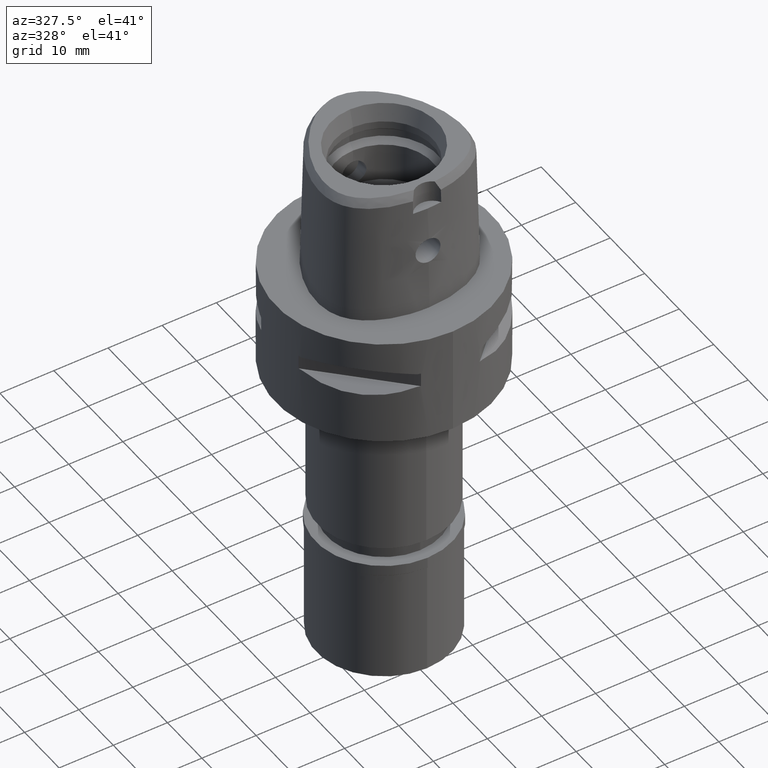
[diagram: clean part render]
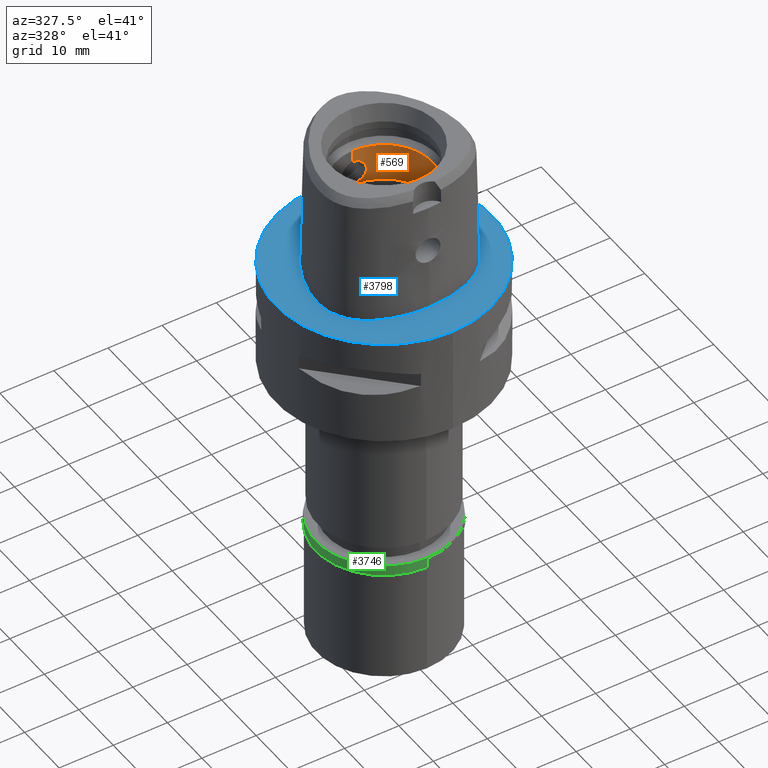
[diagram: same view with three faces highlighted in distinct colors, each labeled with its STEP entity id]
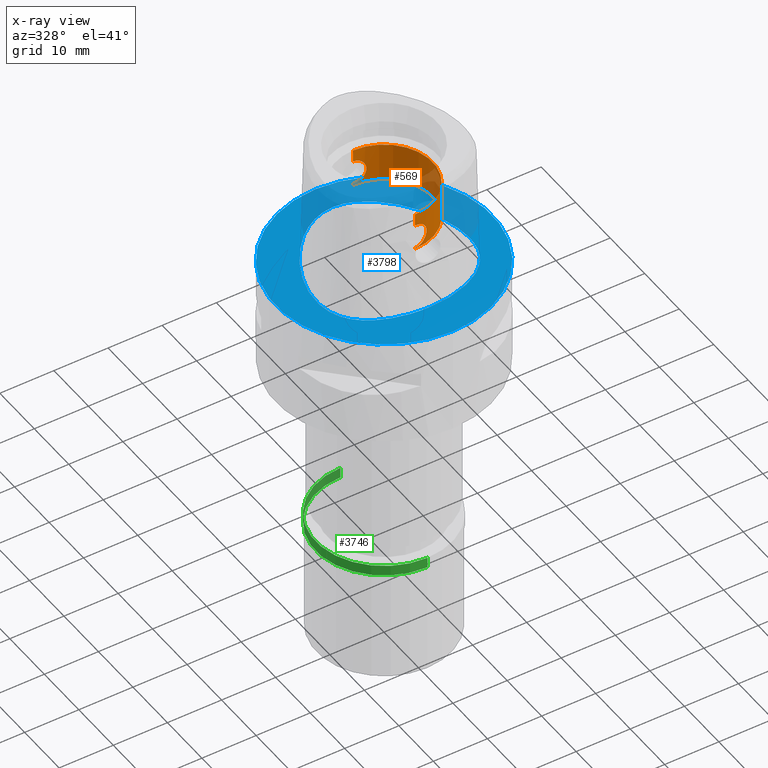
[diagram: x-ray of the same camera — body ghosted, the three highlighted faces saturated]
A machine part, auxiliary view with three faces highlighted in distinct colors.
The next image is the same camera in x-ray (body ghosted, the three faces saturated) — at least one of them is partly hidden behind the body in this view.
Their STEP definitions:

[orange] entity #569 — the highlighted cylindrical surface (partial cylindrical patch) has radius 9 mm, axis along (0, 0, -1).
#17 = CARTESIAN_POINT ( 'NONE',  ( 1.606326325625814899, -8.855510831293836205, 13.14632728210384549 ) ) ;
#69 = CARTESIAN_POINT ( 'NONE',  ( 0.0000000000000000000, 9.000000000000000000, 13.79999999999999893 ) ) ;
#75 = B_SPLINE_CURVE_WITH_KNOTS ( 'NONE', 3,
 ( #1864, #2124, #1480, #1816, #2192, #2944, #2147, #2525, #4013, #1070, #3650, #4375, #2503, #3989, #3257, #2478, #3628, #718, #2848, #2172, #4401, #1389, #4729, #1431, #736, #2897, #1457, #17, #361, #3604, #4061, #1095, #764, #3283, #321, #2548, #2216, #3698, #1773, #412, #4033, #3673, #3331, #4352, #4332, #4712, #387, #3235, #1410, #2870, #861, #2600, #812, #3419, #1595, #523, #1912, #122, #144, #3788, #3036, #2258, #3741, #1887, #3810, #2622, #2282, #4087, #4157, #1207, #3716, #2643, #3766, #3060, #4542, #2303, #2667, #4133, #1181, #3354, #3015, #4475, #79, #788, #4496, #3381, #4518, #2964, #1165, #2692, #503, #1569 ),
 .UNSPECIFIED., .F., .F.,
 ( 4, 2, 2, 1, 1, 2, 2, 2, 1, 1, 1, 2, 2, 2, 2, 2, 2, 2, 2, 1, 1, 2, 2, 2, 1, 1, 2, 2, 2, 2, 2, 1, 1, 2, 2, 2, 1, 1, 1, 2, 2, 2, 2, 2, 2, 1, 1, 2, 2, 2, 1, 1, 2, 2, 4 ),
 ( 0.0000000000000000000, 0.06250000000002453593, 0.09375000000003687328, 0.1093750000000431322, 0.1171875000000461159, 0.1210937500000476424, 0.1250000000000491551, 0.1562500000000612843, 0.1718750000000673905, 0.1796875000000703326, 0.1835937500000718314, 0.1855468750000723865, 0.1875000000000729694, 0.2187500000000777989, 0.2343750000000804357, 0.2421875000000815736, 0.2500000000000827116, 0.2812500000000869860, 0.2968750000000887623, 0.3046875000000893730, 0.3085937500000899836, 0.3105468750000903166, 0.3125000000000906497, 0.3437500000000938694, 0.3593750000000954792, 0.3671875000000963674, 0.3710937500000967004, 0.3750000000000970890, 0.5000000000001029177, 0.5625000000001055822, 0.5937500000001071365, 0.6093750000001081357, 0.6171875000001085798, 0.6210937500001091349, 0.6250000000001096900, 0.6562500000001124656, 0.6718750000001135758, 0.6796875000001140199, 0.6835937500001141309, 0.6855468750001141309, 0.6875000000001141309, 0.7187500000001053602, 0.7500000000000967004, 0.7812500000000879297, 0.7968750000000838218, 0.8046875000000819345, 0.8085937500000811573, 0.8105468750000804912, 0.8125000000000798250, 0.8437500000000655032, 0.8593750000000583977, 0.8671875000000547340, 0.8710937500000531797, 0.8750000000000516254, 1.000000000000000000 ),
 .UNSPECIFIED. ) ;
#79 = CARTESIAN_POINT ( 'NONE',  ( 1.144142947507642782, -8.927204976048921381, 9.503319663895613445 ) ) ;
#93 = CARTESIAN_POINT ( 'NONE',  ( 1.043225307874897201, 8.939340670437449177, 13.55015363776018056 ) ) ;
#118 = CARTESIAN_POINT ( 'NONE',  ( 1.998850508352294275, 8.775331942761297910, 10.35967363748476622 ) ) ;
#122 = CARTESIAN_POINT ( 'NONE',  ( 2.131785812869285035, -8.743929749606808244, 10.63654069759725473 ) ) ;
#124 = VERTEX_POINT ( 'NONE', #2299 ) ;
#127 = EDGE_CURVE ( 'NONE', #3057, #140, #469, .T. ) ;
#138 = CARTESIAN_POINT ( 'NONE',  ( 1.589988290079607403, 8.858448407603923158, 9.837930362951992080 ) ) ;
#140 = VERTEX_POINT ( 'NONE', #69 ) ;
#144 = CARTESIAN_POINT ( 'NONE',  ( 2.102710029786051926, -8.751006779606861130, 10.56551375747989852 ) ) ;
#149 = DIRECTION ( 'NONE',  ( 0.0000000000000000000, 1.000000000000000000, 0.0000000000000000000 ) ) ;
#182 = CARTESIAN_POINT ( 'NONE',  ( 1.539488032335449619, 8.867333814135026415, 9.791067207356270785 ) ) ;
#205 = CARTESIAN_POINT ( 'NONE',  ( 1.887477268059689184, 8.799866990478262707, 10.18556252927382211 ) ) ;
#257 = CARTESIAN_POINT ( 'NONE',  ( 2.143231507327675978, 8.741136134337622821, 12.33465863468454948 ) ) ;
#283 = CARTESIAN_POINT ( 'NONE',  ( 2.020546764140473073, 8.770310066919282832, 12.59945607755286190 ) ) ;
#321 = CARTESIAN_POINT ( 'NONE',  ( 1.900636264596378133, -8.797016614567874981, 12.79524195778367712 ) ) ;
#344 = ORIENTED_EDGE ( 'NONE', *, *, #739, .T. ) ;
#351 = CARTESIAN_POINT ( 'NONE',  ( 1.378391531376518708, 8.893803978129131593, 13.34148441309955224 ) ) ;
#361 = CARTESIAN_POINT ( 'NONE',  ( 1.698461463629937551, -8.838602943488007568, 13.05437228607928546 ) ) ;
#387 = CARTESIAN_POINT ( 'NONE',  ( 2.247260332174848330, -8.715860614123844385, 12.08345425540706053 ) ) ;
#395 = EDGE_CURVE ( 'NONE', #4472, #1572, #75, .T. ) ;
#412 = CARTESIAN_POINT ( 'NONE',  ( 1.998996482039225642, -8.775298839525158101, 12.64007102273102667 ) ) ;
#446 = CARTESIAN_POINT ( 'NONE',  ( 0.2842942744786976506, 9.000000000000001776, 13.80000000000000249 ) ) ;
#469 = B_SPLINE_CURVE_WITH_KNOTS ( 'NONE', 3,
 ( #4174, #2738, #3783, #4221, #1994, #897, #1248, #3101, #2276, #2343, #3414, #1225, #564, #875, #2710, #3055, #922, #4604, #4196, #499, #3831, #1946, #2318, #3126, #182, #2686, #138, #2368, #1589, #1929, #3857, #3804, #3487, #205, #3761, #3031, #476, #1298, #2760, #118, #4511, #1201, #4342, #4294, #3245, #647, #2109, #3955, #1419, #2412, #3905, #619, #2068, #4677, #2807, #257, #1710, #993, #2443, #4319, #283, #3567, #3935, #1737, #3197, #2836, #4001, #1153, #1106, #2982, #4463, #2589, #3726, #3640, #351, #2612, #2536, #3661, #2953, #4021, #4076, #4100, #801, #93, #1469, #2228, #2248, #3341, #1876, #1805, #446, #709 ),
 .UNSPECIFIED., .F., .F.,
 ( 4, 2, 2, 1, 1, 2, 2, 2, 1, 1, 1, 2, 2, 2, 2, 2, 2, 2, 2, 1, 1, 2, 2, 2, 1, 1, 2, 2, 2, 2, 2, 1, 1, 2, 2, 2, 1, 1, 1, 2, 2, 2, 2, 2, 2, 1, 1, 2, 2, 2, 1, 1, 2, 2, 4 ),
 ( 0.0000000000000000000, 0.06250000000001683376, 0.09375000000002525757, 0.1093750000000295736, 0.1171875000000315997, 0.1210937500000327516, 0.1250000000000338896, 0.1562500000000448530, 0.1718750000000502653, 0.1796875000000527356, 0.1835937500000538181, 0.1855468750000544009, 0.1875000000000549838, 0.2187500000000613121, 0.2343750000000641986, 0.2421875000000654476, 0.2500000000000666689, 0.2812500000000713318, 0.2968750000000734968, 0.3046875000000746070, 0.3085937500000747735, 0.3105468750000749401, 0.3125000000000750511, 0.3437500000000771050, 0.3593750000000781042, 0.3671875000000782152, 0.3710937500000782707, 0.3750000000000782707, 0.5000000000000890399, 0.5625000000000949241, 0.5937500000000976996, 0.6093750000000991429, 0.6171875000000994760, 0.6210937500000993650, 0.6250000000000991429, 0.6562500000000972555, 0.6718750000000962563, 0.6796875000000957012, 0.6835937500000950351, 0.6855468750000947020, 0.6875000000000943690, 0.7187500000000821565, 0.7500000000000698330, 0.7812500000000576206, 0.7968750000000515143, 0.8046875000000487388, 0.8085937500000474065, 0.8105468750000466294, 0.8125000000000459632, 0.8437500000000400791, 0.8593750000000370814, 0.8671875000000355271, 0.8710937500000345279, 0.8750000000000336398, 1.000000000000000000 ),
 .UNSPECIFIED. ) ;
#476 = CARTESIAN_POINT ( 'NONE',  ( 1.909158358355817375, 8.795165259541521507, 10.21737622222444664 ) ) ;
#499 = CARTESIAN_POINT ( 'NONE',  ( 1.270096494058384318, 8.909931030218135817, 9.582484427442443220 ) ) ;
#503 = CARTESIAN_POINT ( 'NONE',  ( 0.2843015803237349814, -9.000000000000001776, 9.199999999999997513 ) ) ;
#508 = CARTESIAN_POINT ( 'NONE',  ( 0.0000000000000000000, 1.533257792532000136E-14, 9.000000000000000000 ) ) ;
#510 = LINE ( 'NONE', #1922, #1825 ) ;
#523 = CARTESIAN_POINT ( 'NONE',  ( 2.143153871545444122, -8.741154920549522700, 10.66514205250708791 ) ) ;
#564 = CARTESIAN_POINT ( 'NONE',  ( 1.003375303526317541, 8.944092505824320583, 9.429027726797134079 ) ) ;
#569 = ADVANCED_FACE ( 'NONE', ( #1263 ), #1989, .F. ) ;
#597 = CARTESIAN_POINT ( 'NONE',  ( 0.0000000000000000000, -9.000000000000000000, 9.199999999999999289 ) ) ;
#619 = CARTESIAN_POINT ( 'NONE',  ( 2.227564533389865709, 8.720185235175739180, 12.07778027840702606 ) ) ;
#647 = CARTESIAN_POINT ( 'NONE',  ( 2.122459029638570360, 8.746206908764921906, 10.61384768980790305 ) ) ;
#653 = DIRECTION ( 'NONE',  ( 0.0000000000000000000, -1.000000000000000000, 0.0000000000000000000 ) ) ;
#681 = ORIENTED_EDGE ( 'NONE', *, *, #4388, .F. ) ;
#709 = CARTESIAN_POINT ( 'NONE',  ( 0.0000000000000000000, 9.000000000000000000, 13.79999999999999893 ) ) ;
#718 = CARTESIAN_POINT ( 'NONE',  ( 1.255942053518596779, -8.911937898532285018, 13.42682003221776732 ) ) ;
#736 = CARTESIAN_POINT ( 'NONE',  ( 1.539604600030639814, -8.867313454282568230, 13.20882786136520082 ) ) ;
#739 = EDGE_CURVE ( 'NONE', #4472, #3280, #4144, .T. ) ;
#764 = CARTESIAN_POINT ( 'NONE',  ( 1.875102035795256583, -8.802528531858465399, 12.83200180530228174 ) ) ;
#788 = CARTESIAN_POINT ( 'NONE',  ( 1.043240921622775152, -8.939338849853518454, 9.449854336472400362 ) ) ;
#801 = CARTESIAN_POINT ( 'NONE',  ( 1.144131854872255216, 8.927206413343462543, 13.49668681177458041 ) ) ;
#812 = CARTESIAN_POINT ( 'NONE',  ( 2.194942066047348206, -8.728372154000082261, 10.81174319381028326 ) ) ;
#850 = CARTESIAN_POINT ( 'NONE',  ( 0.0000000000000000000, -9.000000000000000000, 13.79999999999999893 ) ) ;
#861 = CARTESIAN_POINT ( 'NONE',  ( 2.245229321250324706, -8.715661672840052887, 10.99552668263312860 ) ) ;
#875 = CARTESIAN_POINT ( 'NONE',  ( 1.103513926566962899, 8.932119617251720101, 9.481664286374002160 ) ) ;
#897 = CARTESIAN_POINT ( 'NONE',  ( 0.6909134740988142065, 8.973391504268159125, 9.305892266129381696 ) ) ;
#922 = CARTESIAN_POINT ( 'NONE',  ( 1.243083819572371240, 8.913746072108443386, 9.564819854879791805 ) ) ;
#957 = CARTESIAN_POINT ( 'NONE',  ( 0.0000000000000000000, -9.000000000000000000, 13.79999999999999893 ) ) ;
#993 = CARTESIAN_POINT ( 'NONE',  ( 2.131865223053400538, 8.743910644552990163, 12.36326323995622900 ) ) ;
#1070 = CARTESIAN_POINT ( 'NONE',  ( 0.8556747885963124078, -8.959182147894775738, 13.63492781465620141 ) ) ;
#1095 = CARTESIAN_POINT ( 'NONE',  ( 1.848135793142486660, -8.808278489005584078, 12.86943050425852775 ) ) ;
#1106 = CARTESIAN_POINT ( 'NONE',  ( 1.855587325975580848, 8.806834445938104494, 12.86106174108563494 ) ) ;
#1146 = DIRECTION ( 'NONE',  ( 0.0000000000000000000, 0.0000000000000000000, -1.000000000000000000 ) ) ;
#1153 = CARTESIAN_POINT ( 'NONE',  ( 1.891116338053422385, 8.799108700289515639, 12.80998707248646440 ) ) ;
#1165 = CARTESIAN_POINT ( 'NONE',  ( 0.8881032946505491577, -8.956012435392990412, 9.378356617075294110 ) ) ;
#1181 = CARTESIAN_POINT ( 'NONE',  ( 1.291995762142089221, -8.906785481062261312, 9.597171007839797596 ) ) ;
#1201 = CARTESIAN_POINT ( 'NONE',  ( 2.076588996268589060, 8.757239265833526076, 10.51002628683792928 ) ) ;
#1207 = CARTESIAN_POINT ( 'NONE',  ( 1.762349335906515435, -8.825982146232474790, 10.02019725373622272 ) ) ;
#1225 = CARTESIAN_POINT ( 'NONE',  ( 0.9377185160947141274, 8.951197781397585373, 9.398701920660700537 ) ) ;
#1248 = CARTESIAN_POINT ( 'NONE',  ( 0.7460015172899119307, 8.969067623711731940, 9.323735495539441587 ) ) ;
#1263 = FACE_OUTER_BOUND ( 'NONE', #3122, .T. ) ;
#1264 = CIRCLE ( 'NONE', #4665, 9.000000000000000000 ) ;
#1271 = VECTOR ( 'NONE', #2185, 1000.000000000000000 ) ;
#1298 = CARTESIAN_POINT ( 'NONE',  ( 1.909598478106270925, 8.795069651862522875, 10.21802477611444182 ) ) ;
#1384 = ORIENTED_EDGE ( 'NONE', *, *, #3237, .T. ) ;
#1389 = CARTESIAN_POINT ( 'NONE',  ( 1.370120279293631116, -8.895231693179630028, 13.34892550538034861 ) ) ;
#1391 = AXIS2_PLACEMENT_3D ( 'NONE', #4505, #3433, #3073 ) ;
#1410 = CARTESIAN_POINT ( 'NONE',  ( 2.300009323715687337, -8.701141063860092117, 11.35976894844319141 ) ) ;
#1419 = CARTESIAN_POINT ( 'NONE',  ( 2.300029124036676809, 8.701135784595217970, 11.63992761485561545 ) ) ;
#1431 = CARTESIAN_POINT ( 'NONE',  ( 1.490617208786668257, -8.875697753718174710, 13.25213021026488391 ) ) ;
#1457 = CARTESIAN_POINT ( 'NONE',  ( 1.590119237732859458, -8.858424834781448709, 13.16194447547163016 ) ) ;
#1469 = CARTESIAN_POINT ( 'NONE',  ( 0.9931669881019118407, 8.945076297695610634, 13.57507403465709039 ) ) ;
#1480 = CARTESIAN_POINT ( 'NONE',  ( 0.2869275326281257588, -8.996451826777949634, 13.78691779590544542 ) ) ;
#1492 = CARTESIAN_POINT ( 'NONE',  ( 0.0000000000000000000, -9.000000000000000000, 9.000000000000000000 ) ) ;
#1517 = LINE ( 'NONE', #1492, #1271 ) ;
#1556 = EDGE_CURVE ( 'NONE', #3280, #2596, #4042, .T. ) ;
#1569 = CARTESIAN_POINT ( 'NONE',  ( 0.0000000000000000000, -9.000000000000000000, 9.199999999999999289 ) ) ;
#1572 = VERTEX_POINT ( 'NONE', #597 ) ;
#1589 = CARTESIAN_POINT ( 'NONE',  ( 1.698335872373615052, 8.838627239423535897, 9.945489560830671039 ) ) ;
#1595 = CARTESIAN_POINT ( 'NONE',  ( 2.153763615310542612, -8.738558560390712771, 10.69255182653669323 ) ) ;
#1663 = VECTOR ( 'NONE', #4044, 1000.000000000000000 ) ;
#1710 = CARTESIAN_POINT ( 'NONE',  ( 2.136030091705762857, 8.742895276938144278, 12.35291956114454770 ) ) ;
#1737 = CARTESIAN_POINT ( 'NONE',  ( 1.937600561040528913, 8.788951117061312601, 12.73930821688003689 ) ) ;
#1740 = CARTESIAN_POINT ( 'NONE',  ( 0.0000000000000000000, 9.000000000000000000, 9.000000000000000000 ) ) ;
#1748 = AXIS2_PLACEMENT_3D ( 'NONE', #2002, #3886, #653 ) ;
#1773 = CARTESIAN_POINT ( 'NONE',  ( 1.958658137152297973, -8.784400007177971759, 12.70852213503971484 ) ) ;
#1805 = CARTESIAN_POINT ( 'NONE',  ( 0.5860359053434678334, 8.985637473983363321, 13.74655662798978284 ) ) ;
#1816 = CARTESIAN_POINT ( 'NONE',  ( 0.5070085645914156336, -8.985807307111802089, 13.74466532449343603 ) ) ;
#1825 = VECTOR ( 'NONE', #3431, 1000.000000000000000 ) ;
#1864 = CARTESIAN_POINT ( 'NONE',  ( 0.0000000000000000000, -9.000000000000000000, 13.79999999999999893 ) ) ;
#1876 = CARTESIAN_POINT ( 'NONE',  ( 0.8880796753691978518, 8.956014764074062384, 13.62165326822096922 ) ) ;
#1887 = CARTESIAN_POINT ( 'NONE',  ( 1.937531917460025177, -8.788966115894247366, 10.26058449489153013 ) ) ;
#1912 = CARTESIAN_POINT ( 'NONE',  ( 2.135951545457928091, -8.742914213658886879, 10.64688376813695925 ) ) ;
#1922 = CARTESIAN_POINT ( 'NONE',  ( 0.0000000000000000000, 9.000000000000000000, 13.79999999999999893 ) ) ;
#1929 = CARTESIAN_POINT ( 'NONE',  ( 1.757017329324610966, 8.827053910731509134, 10.01385691578347092 ) ) ;
#1946 = CARTESIAN_POINT ( 'NONE',  ( 1.370034636052488874, 8.895244962160106184, 9.651011590355677683 ) ) ;
#1989 = CYLINDRICAL_SURFACE ( 'NONE', #1391, 9.000000000000000000 ) ;
#1994 = CARTESIAN_POINT ( 'NONE',  ( 0.5806353631743527144, 8.981374052987714407, 9.273176414459360473 ) ) ;
#2002 = CARTESIAN_POINT ( 'NONE',  ( 0.0000000000000000000, 1.427938167806000271E-14, 16.10000000000000142 ) ) ;
#2068 = CARTESIAN_POINT ( 'NONE',  ( 2.195011345458310004, 8.728354946619683474, 12.18803607713726045 ) ) ;
#2109 = CARTESIAN_POINT ( 'NONE',  ( 2.247181623749126889, 8.715881470142798904, 10.91623456127454972 ) ) ;
#2124 = CARTESIAN_POINT ( 'NONE',  ( 0.1414394572718114251, -9.000000000000003553, 13.80000000000000071 ) ) ;
#2147 = CARTESIAN_POINT ( 'NONE',  ( 0.7460393360803201368, -8.969064364720253479, 13.67625161466799710 ) ) ;
#2172 = CARTESIAN_POINT ( 'NONE',  ( 1.270196262755647121, -8.909916803540141927, 13.41744948405533400 ) ) ;
#2185 = DIRECTION ( 'NONE',  ( 0.0000000000000000000, -4.440892098500999766E-14, 1.000000000000000000 ) ) ;
#2192 = CARTESIAN_POINT ( 'NONE',  ( 0.5806641694345030524, -8.981372090584237355, 13.72681622953396285 ) ) ;
#2216 = CARTESIAN_POINT ( 'NONE',  ( 1.909312241720382053, -8.795131996938764019, 12.78239470179092763 ) ) ;
#2228 = CARTESIAN_POINT ( 'NONE',  ( 0.9356962697282221741, 8.951187735574679394, 13.60119666654126469 ) ) ;
#2248 = CARTESIAN_POINT ( 'NONE',  ( 0.9112882096304821822, 8.953682610253819618, 13.61178397668155426 ) ) ;
#2258 = CARTESIAN_POINT ( 'NONE',  ( 1.992508994352927720, -8.776729813502360145, 10.34994354244236803 ) ) ;
#2276 = CARTESIAN_POINT ( 'NONE',  ( 0.8374005472541465878, 8.960904913302332631, 9.357838374672535764 ) ) ;
#2282 = CARTESIAN_POINT ( 'NONE',  ( 1.919696485021469279, -8.792873908420570928, 10.23320296648076955 ) ) ;
#2294 = DIRECTION ( 'NONE',  ( 0.0000000000000000000, 0.0000000000000000000, 1.000000000000000000 ) ) ;
#2299 = CARTESIAN_POINT ( 'NONE',  ( 0.0000000000000000000, -9.000000000000000000, 9.000000000000000000 ) ) ;
#2303 = CARTESIAN_POINT ( 'NONE',  ( 1.339494320515296710, -8.899745509041448344, 9.630237461485256389 ) ) ;
#2318 = CARTESIAN_POINT ( 'NONE',  ( 1.459165974816482469, 8.880900083947357970, 9.721721923128022524 ) ) ;
#2343 = CARTESIAN_POINT ( 'NONE',  ( 0.8556309621361457562, 8.959186447952980359, 9.365054623134085432 ) ) ;
#2368 = CARTESIAN_POINT ( 'NONE',  ( 1.606180430766066092, 8.855537364753677920, 9.853530325551371760 ) ) ;
#2370 = ORIENTED_EDGE ( 'NONE', *, *, #2665, .T. ) ;
#2412 = CARTESIAN_POINT ( 'NONE',  ( 2.287169262345011500, 8.704759722416335777, 11.78470094415905223 ) ) ;
#2443 = CARTESIAN_POINT ( 'NONE',  ( 2.102789545941664340, 8.750987946163951037, 12.43430839225081996 ) ) ;
#2478 = CARTESIAN_POINT ( 'NONE',  ( 1.213427018979726713, -8.917849011346953958, 13.45404718015378620 ) ) ;
#2503 = CARTESIAN_POINT ( 'NONE',  ( 1.003437889988973541, -8.944085470630083634, 13.57094237659285518 ) ) ;
#2525 = CARTESIAN_POINT ( 'NONE',  ( 0.8100704059794653356, -8.963437183750905035, 13.65277847172359493 ) ) ;
#2536 = CARTESIAN_POINT ( 'NONE',  ( 1.320804435502574758, 8.902557837976237565, 13.38303979006475508 ) ) ;
#2548 = CARTESIAN_POINT ( 'NONE',  ( 1.905885170423387009, -8.795876688208037919, 12.78748247550208283 ) ) ;
#2589 = CARTESIAN_POINT ( 'NONE',  ( 1.562235469929478926, 8.863664909166551809, 13.19099481730800782 ) ) ;
#2596 = VERTEX_POINT ( 'NONE', #3290 ) ;
#2600 = CARTESIAN_POINT ( 'NONE',  ( 2.227502726626600094, -8.720200847637061159, 10.92198268092230684 ) ) ;
#2612 = CARTESIAN_POINT ( 'NONE',  ( 1.339490234460578799, 8.899746063486114522, 13.36976547356868039 ) ) ;
#2622 = CARTESIAN_POINT ( 'NONE',  ( 1.923653982159919451, -8.792009372542668899, 10.23921397071019790 ) ) ;
#2643 = CARTESIAN_POINT ( 'NONE',  ( 1.562217327617920981, -8.863668096924833151, 9.808989366210813188 ) ) ;
#2665 = EDGE_CURVE ( 'NONE', #4107, #124, #1264, .T. ) ;
#2667 = CARTESIAN_POINT ( 'NONE',  ( 1.320809357725330813, -8.902557156306492914, 9.616963667237609314 ) ) ;
#2686 = CARTESIAN_POINT ( 'NONE',  ( 1.556137702501914077, 8.864439187151120336, 9.806195497750925583 ) ) ;
#2692 = CARTESIAN_POINT ( 'NONE',  ( 0.5860517842162313862, -8.985636713597710212, 9.253446164851636624 ) ) ;
#2710 = CARTESIAN_POINT ( 'NONE',  ( 1.153992557311033895, 8.925804429162244702, 9.509768992775340379 ) ) ;
#2738 = CARTESIAN_POINT ( 'NONE',  ( 0.1414332685976656678, 9.000000000000003553, 9.200000000000001066 ) ) ;
#2760 = CARTESIAN_POINT ( 'NONE',  ( 1.958507268168989679, 8.784433518657383644, 10.29123378003182765 ) ) ;
#2807 = CARTESIAN_POINT ( 'NONE',  ( 2.153839850532926370, 8.738540012296832415, 12.30724488745180700 ) ) ;
#2836 = CARTESIAN_POINT ( 'NONE',  ( 1.923721292558632445, 8.791994767221872564, 12.76068332765367686 ) ) ;
#2848 = CARTESIAN_POINT ( 'NONE',  ( 1.264453099403445746, -8.910734439179163857, 13.42124549127934152 ) ) ;
#2870 = CARTESIAN_POINT ( 'NONE',  ( 2.287132990070880556, -8.704769236784056119, 11.21501786463224626 ) ) ;
#2897 = CARTESIAN_POINT ( 'NONE',  ( 1.556258811836996880, -8.864417823790928352, 13.19369334306376373 ) ) ;
#2944 = CARTESIAN_POINT ( 'NONE',  ( 0.6909482788826992739, -8.973388700834625809, 13.69409681312248850 ) ) ;
#2949 = LINE ( 'NONE', #1740, #1663 ) ;
#2953 = CARTESIAN_POINT ( 'NONE',  ( 1.291990342426311500, 8.906786232751555232, 13.40283267207146345 ) ) ;
#2959 = CARTESIAN_POINT ( 'NONE',  ( 0.0000000000000000000, -9.000000000000000000, 16.10000000000000142 ) ) ;
#2964 = CARTESIAN_POINT ( 'NONE',  ( 0.8950906211820891523, -8.955315988878354005, 9.381299799826038566 ) ) ;
#2982 = CARTESIAN_POINT ( 'NONE',  ( 1.762390603320545868, 8.825973970986819239, 12.97975428659480812 ) ) ;
#3015 = CARTESIAN_POINT ( 'NONE',  ( 1.285286320557383677, -8.907758574496725146, 9.592628597587083306 ) ) ;
#3031 = CARTESIAN_POINT ( 'NONE',  ( 1.905733410235661118, 8.795909429594303219, 10.21229290531322142 ) ) ;
#3036 = CARTESIAN_POINT ( 'NONE',  ( 2.020471278400286952, -8.770327235876150596, 10.40040546104959951 ) ) ;
#3055 = CARTESIAN_POINT ( 'NONE',  ( 1.213335865201509378, 8.917861408068963769, 9.545896276751003384 ) ) ;
#3057 = VERTEX_POINT ( 'NONE', #3817 ) ;
#3060 = CARTESIAN_POINT ( 'NONE',  ( 1.406369410350860605, -8.889418038755358964, 9.679677300347135471 ) ) ;
#3073 = DIRECTION ( 'NONE',  ( 0.0000000000000000000, -1.000000000000000000, 0.0000000000000000000 ) ) ;
#3087 = ORIENTED_EDGE ( 'NONE', *, *, #1556, .T. ) ;
#3101 = CARTESIAN_POINT ( 'NONE',  ( 0.8100290769516935718, 8.963441035551772629, 9.347205996365595126 ) ) ;
#3122 = EDGE_LOOP ( 'NONE', ( #4270, #2370, #1384, #3569, #344, #3087, #681, #4522 ) ) ;
#3126 = CARTESIAN_POINT ( 'NONE',  ( 1.490512913790558169, 8.875715406717681333, 9.747781400700192833 ) ) ;
#3197 = CARTESIAN_POINT ( 'NONE',  ( 1.929298972935683087, 8.790773094520334396, 12.75213079871741506 ) ) ;
#3235 = CARTESIAN_POINT ( 'NONE',  ( 2.299981337333868225, -8.701156898428306974, 11.78092062208957813 ) ) ;
#3237 = EDGE_CURVE ( 'NONE', #124, #1572, #1517, .T. ) ;
#3245 = CARTESIAN_POINT ( 'NONE',  ( 2.119618309048347804, 8.746895874842676832, 10.60708678665671556 ) ) ;
#3257 = CARTESIAN_POINT ( 'NONE',  ( 1.154075757151026727, -8.925793686395085302, 13.49018298279828265 ) ) ;
#3280 = VERTEX_POINT ( 'NONE', #2959 ) ;
#3283 = CARTESIAN_POINT ( 'NONE',  ( 1.887619245187918793, -8.799836668932256245, 12.81423372913141989 ) ) ;
#3290 = CARTESIAN_POINT ( 'NONE',  ( 0.0000000000000000000, 9.000000000000000000, 16.10000000000000142 ) ) ;
#3307 = VECTOR ( 'NONE', #2294, 1000.000000000000000 ) ;
#3331 = CARTESIAN_POINT ( 'NONE',  ( 2.102498546571908822, -8.751033502588560609, 12.43276044537145530 ) ) ;
#3341 = CARTESIAN_POINT ( 'NONE',  ( 0.8950680243300173089, 8.955318234932514443, 13.61870974817279745 ) ) ;
#3354 = CARTESIAN_POINT ( 'NONE',  ( 1.286447194632637459, -8.907590014492837938, 9.593415399668730359 ) ) ;
#3381 = CARTESIAN_POINT ( 'NONE',  ( 0.9357169051227092194, -8.951185587025184631, 9.398812534360240889 ) ) ;
#3414 = CARTESIAN_POINT ( 'NONE',  ( 0.8658490705489807482, 8.958204985007986565, 9.369183275700272873 ) ) ;
#3419 = CARTESIAN_POINT ( 'NONE',  ( 2.177169982522445757, -8.732798443223471097, 10.75664385980451421 ) ) ;
#3431 = DIRECTION ( 'NONE',  ( 0.0000000000000000000, 0.0000000000000000000, 1.000000000000000000 ) ) ;
#3433 = DIRECTION ( 'NONE',  ( 0.0000000000000000000, 0.0000000000000000000, -1.000000000000000000 ) ) ;
#3487 = CARTESIAN_POINT ( 'NONE',  ( 1.874964805610310759, 8.802557650223816310, 10.16780511059482173 ) ) ;
#3567 = CARTESIAN_POINT ( 'NONE',  ( 1.992582494428568163, 8.776713322919233562, 12.64992954828224114 ) ) ;
#3569 = ORIENTED_EDGE ( 'NONE', *, *, #395, .F. ) ;
#3570 = CARTESIAN_POINT ( 'NONE',  ( 0.0000000000000000000, 9.000000000000000000, 9.000000000000000000 ) ) ;
#3604 = CARTESIAN_POINT ( 'NONE',  ( 1.757138021466500888, -8.827029866815070847, 12.98600106682843069 ) ) ;
#3628 = CARTESIAN_POINT ( 'NONE',  ( 1.243178911811429366, -8.913732811695757263, 13.43511907349791734 ) ) ;
#3640 = CARTESIAN_POINT ( 'NONE',  ( 1.406369887774930438, 8.889417872722164660, 13.32032241178033871 ) ) ;
#3650 = CARTESIAN_POINT ( 'NONE',  ( 0.8658928064130049229, -8.958200644884621866, 13.63079895693910260 ) ) ;
#3661 = CARTESIAN_POINT ( 'NONE',  ( 1.300417651662418406, 8.905559522218405633, 13.39710207156167954 ) ) ;
#3673 = CARTESIAN_POINT ( 'NONE',  ( 2.076724185696630087, -8.757207390579724304, 12.48969041011938508 ) ) ;
#3698 = CARTESIAN_POINT ( 'NONE',  ( 1.909754891090222007, -8.795035831872116461, 12.78174220572238440 ) ) ;
#3716 = CARTESIAN_POINT ( 'NONE',  ( 1.703357336643853470, -8.837633475451498910, 9.951254144154264125 ) ) ;
#3726 = CARTESIAN_POINT ( 'NONE',  ( 1.495599194068634619, 8.874985410994341350, 13.24899480473234803 ) ) ;
#3741 = CARTESIAN_POINT ( 'NONE',  ( 1.956449488890275257, -8.784789082568757124, 10.29044883034729096 ) ) ;
#3761 = CARTESIAN_POINT ( 'NONE',  ( 1.900487608772210235, 8.797048592152831858, 10.20453997194413454 ) ) ;
#3766 = CARTESIAN_POINT ( 'NONE',  ( 1.495589781548468000, -8.874987073908718216, 9.750997483622095174 ) ) ;
#3783 = CARTESIAN_POINT ( 'NONE',  ( 0.2869141885145866655, 8.996452200569088120, 9.213081057489807435 ) ) ;
#3788 = CARTESIAN_POINT ( 'NONE',  ( 2.072739825264037883, -8.758195903674206306, 10.50030056292676228 ) ) ;
#3804 = CARTESIAN_POINT ( 'NONE',  ( 1.848006702682215785, 8.808305489384688158, 10.13039560113880633 ) ) ;
#3810 = CARTESIAN_POINT ( 'NONE',  ( 1.929231123487942456, -8.790787858489235163, 10.24776466792478757 ) ) ;
#3817 = CARTESIAN_POINT ( 'NONE',  ( 0.0000000000000000000, 9.000000000000000000, 9.199999999999999289 ) ) ;
#3831 = CARTESIAN_POINT ( 'NONE',  ( 1.317217964302046074, 8.903196009666899613, 9.613794260725056162 ) ) ;
#3857 = CARTESIAN_POINT ( 'NONE',  ( 1.827460236492150836, 8.812626075051623431, 10.10292381216415158 ) ) ;
#3886 = DIRECTION ( 'NONE',  ( 0.0000000000000000000, 0.0000000000000000000, 1.000000000000000000 ) ) ;
#3905 = CARTESIAN_POINT ( 'NONE',  ( 2.245285359342092946, 8.715647387226118425, 12.00422526779135701 ) ) ;
#3935 = CARTESIAN_POINT ( 'NONE',  ( 1.956519884689177591, 8.784773557476604822, 12.70943740373437869 ) ) ;
#3955 = CARTESIAN_POINT ( 'NONE',  ( 2.299941602979094668, 8.701167487288065772, 11.21871107709265836 ) ) ;
#3989 = CARTESIAN_POINT ( 'NONE',  ( 1.103590238116972433, -8.932110166286184594, 13.51829409846318164 ) ) ;
#4001 = CARTESIAN_POINT ( 'NONE',  ( 1.919763650787528420, 8.792859363468400247, 12.76669524742838391 ) ) ;
#4013 = CARTESIAN_POINT ( 'NONE',  ( 0.8374433756603630874, -8.960900794299208272, 13.64214488543483839 ) ) ;
#4021 = CARTESIAN_POINT ( 'NONE',  ( 1.286441757554878329, 8.907590767424624190, 13.40658826893606026 ) ) ;
#4033 = CARTESIAN_POINT ( 'NONE',  ( 2.052055239435507605, -8.763010618487882653, 12.53947415183078284 ) ) ;
#4035 = EDGE_CURVE ( 'NONE', #4107, #3057, #2949, .T. ) ;
#4042 = CIRCLE ( 'NONE', #1748, 9.000000000000000000 ) ;
#4044 = DIRECTION ( 'NONE',  ( 0.0000000000000000000, -2.664535259099999884E-14, 1.000000000000000000 ) ) ;
#4061 = CARTESIAN_POINT ( 'NONE',  ( 1.827585697682806654, -8.812600102163255400, 12.89691224380770329 ) ) ;
#4076 = CARTESIAN_POINT ( 'NONE',  ( 1.285281078709582081, 8.907759299098957584, 13.40737493516784973 ) ) ;
#4087 = CARTESIAN_POINT ( 'NONE',  ( 1.891056123115774312, -8.799121521652375932, 10.18992659141677493 ) ) ;
#4100 = CARTESIAN_POINT ( 'NONE',  ( 1.212468344398807796, 8.918232905177244874, 13.45620263016343543 ) ) ;
#4107 = VERTEX_POINT ( 'NONE', #3570 ) ;
#4133 = CARTESIAN_POINT ( 'NONE',  ( 1.300423005345911154, -8.905558778567721490, 9.602901598660054105 ) ) ;
#4144 = LINE ( 'NONE', #850, #3307 ) ;
#4157 = CARTESIAN_POINT ( 'NONE',  ( 1.855533357053531729, -8.806845689196839189, 10.13886543263290818 ) ) ;
#4174 = CARTESIAN_POINT ( 'NONE',  ( 0.0000000000000000000, 9.000000000000000000, 9.199999999999999289 ) ) ;
#4196 = CARTESIAN_POINT ( 'NONE',  ( 1.264355213506846320, 8.910748331373870457, 9.578690091648367044 ) ) ;
#4221 = CARTESIAN_POINT ( 'NONE',  ( 0.5069837168869593125, 8.985808802276350704, 9.255329197608878289 ) ) ;
#4270 = ORIENTED_EDGE ( 'NONE', *, *, #4035, .F. ) ;
#4294 = CARTESIAN_POINT ( 'NONE',  ( 2.112798462841538605, 8.748546398406633173, 10.59106741832497001 ) ) ;
#4319 = CARTESIAN_POINT ( 'NONE',  ( 2.072818420318101040, 8.758177576889769611, 12.49953757637010376 ) ) ;
#4332 = CARTESIAN_POINT ( 'NONE',  ( 2.119746319331647477, -8.746865041110625683, 12.39260929214486673 ) ) ;
#4342 = CARTESIAN_POINT ( 'NONE',  ( 2.102367534972939378, 8.751064788553264862, 10.56694439149121756 ) ) ;
#4352 = CARTESIAN_POINT ( 'NONE',  ( 2.112927675235093616, -8.748515381571278837, 12.40863218409268676 ) ) ;
#4375 = CARTESIAN_POINT ( 'NONE',  ( 0.9377720272294973736, -8.951192132941610424, 13.60127452721956409 ) ) ;
#4388 = EDGE_CURVE ( 'NONE', #140, #2596, #510, .T. ) ;
#4401 = CARTESIAN_POINT ( 'NONE',  ( 1.317304631259516690, -8.903183110674531164, 13.38614484677569294 ) ) ;
#4463 = CARTESIAN_POINT ( 'NONE',  ( 1.703395452288534173, 8.837626184159152132, 13.04870496505663269 ) ) ;
#4472 = VERTEX_POINT ( 'NONE', #957 ) ;
#4475 = CARTESIAN_POINT ( 'NONE',  ( 1.212476518504270517, -8.918231782823177412, 9.543802569768878641 ) ) ;
#4496 = CARTESIAN_POINT ( 'NONE',  ( 0.9931848985196777280, -8.945074307747308495, 9.424934585414382227 ) ) ;
#4505 = CARTESIAN_POINT ( 'NONE',  ( 0.0000000000000000000, 1.533257792532000136E-14, 25.19999999999999929 ) ) ;
#4511 = CARTESIAN_POINT ( 'NONE',  ( 2.051916477511434245, 8.763042932539123697, 10.46025211648980502 ) ) ;
#4518 = CARTESIAN_POINT ( 'NONE',  ( 0.9113100209342810398, -8.953680402087512036, 9.388225437199773538 ) ) ;
#4522 = ORIENTED_EDGE ( 'NONE', *, *, #127, .F. ) ;
#4542 = CARTESIAN_POINT ( 'NONE',  ( 1.378393353943735411, -8.893803776932715621, 9.658516982889311819 ) ) ;
#4604 = CARTESIAN_POINT ( 'NONE',  ( 1.255845283587857741, 8.911951536965238674, 9.573116896762480010 ) ) ;
#4665 = AXIS2_PLACEMENT_3D ( 'NONE', #508, #1146, #149 ) ;
#4677 = CARTESIAN_POINT ( 'NONE',  ( 2.177242703539239876, 8.732780537221534800, 12.24314351657693223 ) ) ;
#4712 = CARTESIAN_POINT ( 'NONE',  ( 2.122587336488000354, -8.746175957752928554, 12.38584492948085902 ) ) ;
#4729 = CARTESIAN_POINT ( 'NONE',  ( 1.459263900468392494, -8.880883830622840591, 13.27819786436553962 ) ) ;

[blue] entity #3798 — the highlighted planar face has unit normal (0, 0, -1).
#46 = ORIENTED_EDGE ( 'NONE', *, *, #2725, .F. ) ;
#123 = CARTESIAN_POINT ( 'NONE',  ( -11.50301490364511281, 6.641268751112280988, -8.849634531584403552E-08 ) ) ;
#145 = CARTESIAN_POINT ( 'NONE',  ( -13.73754041652155955, -5.736583203755429849, -8.849634531584403552E-08 ) ) ;
#237 = CARTESIAN_POINT ( 'NONE',  ( 11.83679698609779685, -9.028767377185564769, 3.259303817506123413E-07 ) ) ;
#327 = CIRCLE ( 'NONE', #477, 20.00000000000000000 ) ;
#432 = CARTESIAN_POINT ( 'NONE',  ( -4.310977884891000239E-11, -13.16299999999000114, 3.553453827484000212E-13 ) ) ;
#477 = AXIS2_PLACEMENT_3D ( 'NONE', #1243, #4574, #2314 ) ;
#482 = CARTESIAN_POINT ( 'NONE',  ( -11.83679699363146653, -9.028767384340220303, -8.849634531584403552E-08 ) ) ;
#538 = EDGE_CURVE ( 'NONE', #2408, #1661, #4426, .T. ) ;
#572 = CARTESIAN_POINT ( 'NONE',  ( 0.0000000000000000000, 20.00000000000000000, 0.0000000000000000000 ) ) ;
#595 = CARTESIAN_POINT ( 'NONE',  ( 4.043386006288006485, -12.92392499193325150, 3.259303817506123413E-07 ) ) ;
#599 = EDGE_CURVE ( 'NONE', #935, #1660, #327, .T. ) ;
#630 = EDGE_LOOP ( 'NONE', ( #4303, #2372 ) ) ;
#707 = CARTESIAN_POINT ( 'NONE',  ( 3.782076370278113053, 14.19393593005256093, 3.259303817506123413E-07 ) ) ;
#813 = CARTESIAN_POINT ( 'NONE',  ( -12.52522392937495077, -8.173666407552477864, -8.849634531584403552E-08 ) ) ;
#820 = AXIS2_PLACEMENT_3D ( 'NONE', #1937, #2648, #1554 ) ;
#935 = VERTEX_POINT ( 'NONE', #2035 ) ;
#972 = CARTESIAN_POINT ( 'NONE',  ( 13.34121470620590699, -6.760328902934321427, 3.259303817506123413E-07 ) ) ;
#1166 = CARTESIAN_POINT ( 'NONE',  ( -1.631981572617246634, 14.84698125218087839, -8.849634531584403552E-08 ) ) ;
#1209 = CARTESIAN_POINT ( 'NONE',  ( -13.21414037256064233, 2.960287500756569656, -8.849634531584403552E-08 ) ) ;
#1243 = CARTESIAN_POINT ( 'NONE',  ( 0.0000000000000000000, 1.265060143519000015E-14, 0.0000000000000000000 ) ) ;
#1253 = CARTESIAN_POINT ( 'NONE',  ( 13.21414036275843351, 2.960287497215728258, 3.259303817506123413E-07 ) ) ;
#1254 = CARTESIAN_POINT ( 'NONE',  ( -14.17320396814085548, -2.619206249984884050, -8.849634531584403552E-08 ) ) ;
#1266 = CIRCLE ( 'NONE', #820, 20.00000000000000000 ) ;
#1277 = CARTESIAN_POINT ( 'NONE',  ( 14.05597388775646195, -4.368733592594098880, 3.259303817506123413E-07 ) ) ;
#1468 = EDGE_CURVE ( 'NONE', #1661, #2408, #2290, .T. ) ;
#1521 = FACE_OUTER_BOUND ( 'NONE', #4320, .T. ) ;
#1551 = CARTESIAN_POINT ( 'NONE',  ( -4.043386008120562813, -12.92392500219718521, -8.849634531584403552E-08 ) ) ;
#1554 = DIRECTION ( 'NONE',  ( 0.0000000000000000000, 1.000000000000000000, 0.0000000000000000000 ) ) ;
#1596 = CARTESIAN_POINT ( 'NONE',  ( -13.34121471568780137, -6.760328907149574462, -8.849634531584403552E-08 ) ) ;
#1619 = CARTESIAN_POINT ( 'NONE',  ( 6.372642516009699776, 12.66899061853435882, 3.259303817506123413E-07 ) ) ;
#1660 = VERTEX_POINT ( 'NONE', #572 ) ;
#1661 = VERTEX_POINT ( 'NONE', #3551 ) ;
#1666 = CARTESIAN_POINT ( 'NONE',  ( 13.73754040654506881, -5.736583200801524285, 3.259303817506123413E-07 ) ) ;
#1693 = CARTESIAN_POINT ( 'NONE',  ( 12.52522392098514459, -8.173666401449692032, 3.259303817506123413E-07 ) ) ;
#1719 = CARTESIAN_POINT ( 'NONE',  ( 1.347795335413845219, -13.16299999184825076, 3.259303817506123413E-07 ) ) ;
#1937 = CARTESIAN_POINT ( 'NONE',  ( 0.0000000000000000000, 1.265060143519000015E-14, 0.0000000000000000000 ) ) ;
#2023 = CARTESIAN_POINT ( 'NONE',  ( 14.17320395774103758, -2.619206250057754204, 3.259303817506123413E-07 ) ) ;
#2035 = CARTESIAN_POINT ( 'NONE',  ( 0.0000000000000000000, -20.00000000000000000, 0.0000000000000000000 ) ) ;
#2070 = ORIENTED_EDGE ( 'NONE', *, *, #599, .F. ) ;
#2075 = CARTESIAN_POINT ( 'NONE',  ( 9.354901129171215857, -10.96475155539229895, 3.259303817506123413E-07 ) ) ;
#2238 = CARTESIAN_POINT ( 'NONE',  ( -7.161686386222819500, -12.03179218958744734, -8.849634531584403552E-08 ) ) ;
#2261 = CARTESIAN_POINT ( 'NONE',  ( -9.354901134303815979, -10.96475156443217358, -8.849634531584403552E-08 ) ) ;
#2280 = DIRECTION ( 'NONE',  ( 0.0000000000000000000, -1.000000000000000000, 0.0000000000000000000 ) ) ;
#2290 = B_SPLINE_CURVE_WITH_KNOTS ( 'NONE', 3,
 ( #4497, #4111, #1166, #4477, #3421, #2623, #123, #1209, #4563, #1254, #4543, #145, #1596, #3401, #813, #482, #4202, #2261, #2238, #1551, #3717, #432 ),
 .UNSPECIFIED., .F., .F.,
 ( 4, 1, 1, 1, 1, 1, 1, 1, 1, 1, 1, 1, 1, 1, 1, 1, 1, 1, 1, 4 ),
 ( 0.0000000000000000000, 0.04166666666980999717, 0.08333333333634000695, 0.1666666666694000265, 0.2500000000025000002, 0.3333333333355000261, 0.4166666666687000031, 0.5000000000016999735, 0.5416666666682999898, 0.5833333333347000549, 0.6250000000012999601, 0.6458333333344999927, 0.6666666666678999764, 0.6875000000011000090, 0.7083333333343000415, 0.7500000000008999468, 0.7916666666675000741, 0.8333333333339000282, 0.9166666666671000607, 1.000000000000000000 ),
 .UNSPECIFIED. ) ;
#2314 = DIRECTION ( 'NONE',  ( 0.0000000000000000000, -1.000000000000000000, 0.0000000000000000000 ) ) ;
#2372 = ORIENTED_EDGE ( 'NONE', *, *, #538, .F. ) ;
#2405 = CARTESIAN_POINT ( 'NONE',  ( -4.310977884891000239E-11, -13.16299999999000114, 3.553453827484000212E-13 ) ) ;
#2408 = VERTEX_POINT ( 'NONE', #2405 ) ;
#2623 = CARTESIAN_POINT ( 'NONE',  ( -9.170754364441370043, 9.963637501433773025, -8.849634531584403552E-08 ) ) ;
#2641 = CARTESIAN_POINT ( 'NONE',  ( 0.0000000000000000000, 1.224646799146999965E-14, 0.0000000000000000000 ) ) ;
#2648 = DIRECTION ( 'NONE',  ( 0.0000000000000000000, 0.0000000000000000000, -1.000000000000000000 ) ) ;
#2716 = CARTESIAN_POINT ( 'NONE',  ( 1.281904873261000095E-10, 14.96299999995999919, 3.560115165630999904E-13 ) ) ;
#2725 = EDGE_CURVE ( 'NONE', #1660, #935, #1266, .T. ) ;
#2882 = CARTESIAN_POINT ( 'NONE',  ( 9.170754356476422231, 9.963637494716792276, 3.259303817506123413E-07 ) ) ;
#2991 = FACE_BOUND ( 'NONE', #630, .T. ) ;
#3084 = CARTESIAN_POINT ( 'NONE',  ( 0.5439938567662704338, 14.96299999186335583, 3.259303817506123413E-07 ) ) ;
#3133 = CARTESIAN_POINT ( 'NONE',  ( 12.97089750785796269, -7.488751167793143537, 3.259303817506123413E-07 ) ) ;
#3179 = CARTESIAN_POINT ( 'NONE',  ( 11.50301489463130977, 6.641268745905058779, 3.259303817506123413E-07 ) ) ;
#3202 = AXIS2_PLACEMENT_3D ( 'NONE', #2641, #3309, #2280 ) ;
#3309 = DIRECTION ( 'NONE',  ( 0.0000000000000000000, 0.0000000000000000000, -1.000000000000000000 ) ) ;
#3401 = CARTESIAN_POINT ( 'NONE',  ( -12.97089751684834980, -7.488751172982922810, -8.849634531584403552E-08 ) ) ;
#3421 = CARTESIAN_POINT ( 'NONE',  ( -6.372642522468282777, 12.66899062675251919, -8.849634531584403552E-08 ) ) ;
#3446 = CARTESIAN_POINT ( 'NONE',  ( 1.631981570476512822, 14.84698124197574920, 3.259303817506123413E-07 ) ) ;
#3494 = CARTESIAN_POINT ( 'NONE',  ( 14.00068087210110512, -0.1863062514350911636, 3.259303817506123413E-07 ) ) ;
#3551 = CARTESIAN_POINT ( 'NONE',  ( 1.281904873261000095E-10, 14.96299999995999919, 3.560115165630999904E-13 ) ) ;
#3717 = CARTESIAN_POINT ( 'NONE',  ( -1.347795336044895320, -13.16300000221862909, -8.849634531584403552E-08 ) ) ;
#3798 = ADVANCED_FACE ( 'NONE', ( #1521, #2991 ), #4108, .F. ) ;
#3863 = CARTESIAN_POINT ( 'NONE',  ( 10.81142121742842122, -9.988463665436583483, 3.259303817506123413E-07 ) ) ;
#4108 = PLANE ( 'NONE',  #3202 ) ;
#4111 = CARTESIAN_POINT ( 'NONE',  ( -0.5439938575016683986, 14.96300000221750182, -8.849634531584403552E-08 ) ) ;
#4201 = CARTESIAN_POINT ( 'NONE',  ( -4.310977884891000239E-11, -13.16299999999000114, 3.553453827484000212E-13 ) ) ;
#4202 = CARTESIAN_POINT ( 'NONE',  ( -10.81142122386250648, -9.988463673622582917, -8.849634531584403552E-08 ) ) ;
#4275 = CARTESIAN_POINT ( 'NONE',  ( 7.161686382675719109, -12.03179217978882498, 3.259303817506123413E-07 ) ) ;
#4303 = ORIENTED_EDGE ( 'NONE', *, *, #1468, .F. ) ;
#4320 = EDGE_LOOP ( 'NONE', ( #46, #2070 ) ) ;
#4426 = B_SPLINE_CURVE_WITH_KNOTS ( 'NONE', 3,
 ( #4201, #1719, #595, #4275, #2075, #3863, #237, #1693, #3133, #972, #1666, #1277, #2023, #3494, #1253, #3179, #2882, #1619, #707, #3446, #3084, #2716 ),
 .UNSPECIFIED., .F., .F.,
 ( 4, 1, 1, 1, 1, 1, 1, 1, 1, 1, 1, 1, 1, 1, 1, 1, 1, 1, 1, 4 ),
 ( 0.0000000000000000000, 0.08333333333395000209, 0.1666666666671000052, 0.2083333333335000148, 0.2500000000000999756, 0.2916666666666999919, 0.3124999999998999689, 0.3333333333331000015, 0.3541666666665000407, 0.3749999999996999622, 0.4166666666662000029, 0.4583333333326999881, 0.4999999999992999489, 0.5833333333322999747, 0.6666666666653999762, 0.7499999999984999777, 0.8333333333315000591, 0.9166666666646000605, 0.9583333333311000457, 1.000000000000000000 ),
 .UNSPECIFIED. ) ;
#4477 = CARTESIAN_POINT ( 'NONE',  ( -3.782076374736119906, 14.19393593951536126, -8.849634531584403552E-08 ) ) ;
#4497 = CARTESIAN_POINT ( 'NONE',  ( 1.281904873261000095E-10, 14.96299999995999919, 3.560115165630999904E-13 ) ) ;
#4543 = CARTESIAN_POINT ( 'NONE',  ( -14.05597389805885911, -4.368733594064009296, -8.849634531584403552E-08 ) ) ;
#4563 = CARTESIAN_POINT ( 'NONE',  ( -14.00068088235506458, -0.1863062496102979304, -8.849634531584403552E-08 ) ) ;
#4574 = DIRECTION ( 'NONE',  ( 0.0000000000000000000, 0.0000000000000000000, -1.000000000000000000 ) ) ;

[green] entity #3746 — the highlighted cylindrical surface (partial cylindrical patch) has radius 12.65 mm, axis along (0, 0, -1).
#51 = VERTEX_POINT ( 'NONE', #2233 ) ;
#175 = LINE ( 'NONE', #1404, #976 ) ;
#226 = VERTEX_POINT ( 'NONE', #2174 ) ;
#241 = ORIENTED_EDGE ( 'NONE', *, *, #917, .T. ) ;
#455 = CARTESIAN_POINT ( 'NONE',  ( 0.0000000000000000000, 0.0000000000000000000, 0.0000000000000000000 ) ) ;
#602 = CIRCLE ( 'NONE', #3275, 12.65000000000000036 ) ;
#660 = CARTESIAN_POINT ( 'NONE',  ( 0.0000000000000000000, 12.65000000000000036, -1.949999999999999956 ) ) ;
#774 = DIRECTION ( 'NONE',  ( 0.0000000000000000000, -1.000000000000000000, 0.0000000000000000000 ) ) ;
#786 = DIRECTION ( 'NONE',  ( 0.0000000000000000000, 0.0000000000000000000, -1.000000000000000000 ) ) ;
#917 = EDGE_CURVE ( 'NONE', #4715, #2810, #2453, .T. ) ;
#976 = VECTOR ( 'NONE', #3960, 1000.000000000000000 ) ;
#1187 = CARTESIAN_POINT ( 'NONE',  ( 0.0000000000000000000, 12.65000000000000036, 0.0000000000000000000 ) ) ;
#1396 = DIRECTION ( 'NONE',  ( 0.0000000000000000000, 0.0000000000000000000, 1.000000000000000000 ) ) ;
#1404 = CARTESIAN_POINT ( 'NONE',  ( 0.0000000000000000000, -12.65000000000000036, 0.0000000000000000000 ) ) ;
#1486 = DIRECTION ( 'NONE',  ( 0.0000000000000000000, 0.0000000000000000000, -1.000000000000000000 ) ) ;
#1552 = ORIENTED_EDGE ( 'NONE', *, *, #2673, .T. ) ;
#1637 = ORIENTED_EDGE ( 'NONE', *, *, #2954, .F. ) ;
#1696 = AXIS2_PLACEMENT_3D ( 'NONE', #2800, #1396, #2086 ) ;
#1813 = FACE_OUTER_BOUND ( 'NONE', #4628, .T. ) ;
#1862 = CYLINDRICAL_SURFACE ( 'NONE', #4290, 12.65000000000000036 ) ;
#1971 = EDGE_CURVE ( 'NONE', #51, #226, #602, .T. ) ;
#2086 = DIRECTION ( 'NONE',  ( 0.0000000000000000000, 1.000000000000000000, 0.0000000000000000000 ) ) ;
#2174 = CARTESIAN_POINT ( 'NONE',  ( 0.0000000000000000000, 12.65000000000000036, 0.0000000000000000000 ) ) ;
#2233 = CARTESIAN_POINT ( 'NONE',  ( 0.0000000000000000000, -12.65000000000000036, 0.0000000000000000000 ) ) ;
#2453 = CIRCLE ( 'NONE', #1696, 12.65000000000000036 ) ;
#2673 = EDGE_CURVE ( 'NONE', #226, #4715, #3403, .T. ) ;
#2727 = VECTOR ( 'NONE', #3719, 1000.000000000000000 ) ;
#2800 = CARTESIAN_POINT ( 'NONE',  ( 0.0000000000000000000, 0.0000000000000000000, -1.949999999999999956 ) ) ;
#2810 = VERTEX_POINT ( 'NONE', #4067 ) ;
#2866 = ORIENTED_EDGE ( 'NONE', *, *, #1971, .T. ) ;
#2954 = EDGE_CURVE ( 'NONE', #51, #2810, #175, .T. ) ;
#3275 = AXIS2_PLACEMENT_3D ( 'NONE', #3684, #1486, #774 ) ;
#3329 = DIRECTION ( 'NONE',  ( 0.0000000000000000000, -1.000000000000000000, 0.0000000000000000000 ) ) ;
#3403 = LINE ( 'NONE', #1187, #2727 ) ;
#3684 = CARTESIAN_POINT ( 'NONE',  ( 0.0000000000000000000, 0.0000000000000000000, 0.0000000000000000000 ) ) ;
#3719 = DIRECTION ( 'NONE',  ( 0.0000000000000000000, 0.0000000000000000000, -1.000000000000000000 ) ) ;
#3746 = ADVANCED_FACE ( 'NONE', ( #1813 ), #1862, .T. ) ;
#3960 = DIRECTION ( 'NONE',  ( 0.0000000000000000000, 0.0000000000000000000, -1.000000000000000000 ) ) ;
#4067 = CARTESIAN_POINT ( 'NONE',  ( 0.0000000000000000000, -12.65000000000000036, -1.949999999999999956 ) ) ;
#4290 = AXIS2_PLACEMENT_3D ( 'NONE', #455, #786, #3329 ) ;
#4628 = EDGE_LOOP ( 'NONE', ( #241, #1637, #2866, #1552 ) ) ;
#4715 = VERTEX_POINT ( 'NONE', #660 ) ;